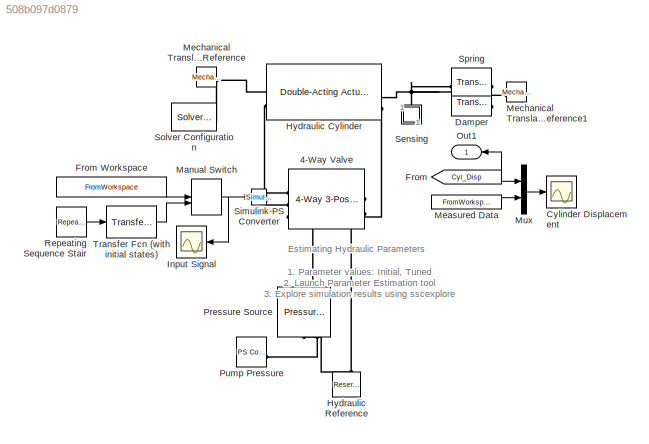
MODEL slx_508b097d0879
KIND model
CONFIG AbsTol = 1e-3
CONFIG EnableMultiTasking = on
CONFIG PreLoadFcn = load HS_Param_Est_Data\nHS_Param_Start_Values\n
CONFIG SolverName = ode23t
CONFIG StopTime = 12
BLOCK [Reference] 4-Way Valve  REF=SimscapeFluids_lib/Isothermal Liquid/Valves & Orifices/Directional Control
Valves/4-Way 3-Position
Directional Valve
(IL)
  LibrarySourceBlock = sh_lib/Valves/Directional Valves/4-Way Directional\nValve
  NameLocation = right
  SourceBlock = SimscapeFluids_lib/Isothermal Liquid/Valves & Orifices/Directional Control\nValves/4-Way 3-Position\nDirectional Valve\n(IL)
  SourceType = 4-Way 3-Position\nDirectional Valve\n(IL)
  Tag = Factory Generic
BLOCK [Scope] Cylinder Displacement
  ActiveDisplayYMaximum = 0.48539
  ActiveDisplayYMinimum = -1.41946
  DataLogging = on
  DataLoggingDecimation = 1
  DataLoggingSaveFormat = Structure With Time
  DataLoggingVariableName = HS_Param_Est_DATA
  Floating = off
  GraphicalSettings = {"GraphicalSettings":{"LegacySettings":true,"Style":{"AxesScalingProperties":{"ScaleAxesLimitsAtStop":false},"Style":{"AxesColor":"[0 0 0]","BackgroundColor":"[0.501960784313725 0.501960784313725 0.501960784313725]","ChannelNames":[""],"ColorOrder":"[1 0.909803921568627 0.392156862745098;0.149019607843137 0.549019607843137 0.866666666666667;0.96078431372549 0.466666666666667 0.16078431372549;0.286...<+669ch>
  MultipleDisplayCache = [{"MaxYLimMag":1.41946,"MaxYLimReal":0.48539,"MinYLimMag":0,"MinYLimReal":-1.41946,"PlotAsMagnitudePhase":false,"ShowGrid":true,"ShowLegend":false,"Title":"%<SignalLabel>","YLabel":""}]
  NumInputPorts = 1
  ScopeFrameLocation = window
  Visible = on
  WasSavedAsWebScope = on
  WindowPosition = [716.000000,781.000000,418.000000,210.000000,]
BLOCK [Reference] Damper  REF=fl_lib/Mechanical/Translational
Elements/Translational Damper
  SourceBlock = fl_lib/Mechanical/Translational\nElements/Translational Damper
  SourceType = Translational Damper
BLOCK [From] From
  GotoTag = Cyl_Disp
  Tag = CustomStyle
  TagVisibility = global
BLOCK [FromWorkspace] From Workspace
  NameLocation = top
  VariableName = [HS_Input_time HS_Input_signal]
BLOCK [Reference] Hydraulic Cylinder  REF=SimscapeFluids_lib/Isothermal Liquid/Actuators/Double-Acting
Actuator (IL)
  LibrarySourceBlock = sh_lib/Hydraulic Cylinders/Double-Acting\nHydraulic Cylinder
  SourceBlock = SimscapeFluids_lib/Isothermal Liquid/Actuators/Double-Acting\nActuator (IL)
  SourceType = Double-Acting\nActuator (IL)
BLOCK [Reference] Hydraulic Reference  REF=fl_lib/Isothermal Liquid/Elements/Reservoir (IL)
  LibrarySourceBlock = fl_lib/Hydraulic/Hydraulic Elements/Hydraulic Reference
  NameLocation = right
  SourceBlock = fl_lib/Isothermal Liquid/Elements/Reservoir (IL)
  SourceType = Reservoir (IL)
  Tag = Factory Generic
BLOCK [Scope] Input Signal
  ActiveDisplayYMaximum = 1.25
  ActiveDisplayYMinimum = -1.25
  DataLogging = on
  DataLoggingDecimation = 1
  DataLoggingSaveFormat = Structure With Time
  DataLoggingVariableName = HS_Param_Est_Input_DATA
  Floating = off
  GraphicalSettings = {"GraphicalSettings":{"LegacySettings":true,"Style":{"Style":{"AxesColor":"[0 0 0]","BackgroundColor":"[0.501960784313725 0.501960784313725 0.501960784313725]","ChannelNames":[""],"ColorOrder":"[1 0.909803921568627 0.392156862745098;0.149019607843137 0.549019607843137 0.866666666666667;0.96078431372549 0.466666666666667 0.16078431372549;0.286274509803922 0.858823529411765 0.250980392156863;0.75294...<+615ch>
  MultipleDisplayCache = [{"MaxYLimMag":1.25,"MaxYLimReal":1.25,"MinYLimMag":0,"MinYLimReal":-1.25,"PlotAsMagnitudePhase":false,"ShowGrid":true,"ShowLegend":false,"Title":"%<SignalLabel>","YLabel":""}]
  NumInputPorts = 1
  WasSavedAsWebScope = on
BLOCK [ManualSwitch] Manual Switch
BLOCK [FromWorkspace] Measured Data
  VariableName = [HS_Position_time HS_Position_signal]
BLOCK [Reference] Mechanical Translational Reference  REF=fl_lib/Mechanical/Translational
Elements/Mechanical
Translational
Reference
  SourceBlock = fl_lib/Mechanical/Translational\nElements/Mechanical\nTranslational\nReference
  SourceType = Mechanical\nTranslational\nReference
BLOCK [Reference] Mechanical Translational Reference1  REF=fl_lib/Mechanical/Translational
Elements/Mechanical
Translational
Reference
  SourceBlock = fl_lib/Mechanical/Translational\nElements/Mechanical\nTranslational\nReference
  SourceType = Mechanical\nTranslational\nReference
BLOCK [Mux] Mux
  DisplayOption = bar
  Inputs = 2
BLOCK [Outport] Out1
  VectorParamsAs1DForOutWhenUnconnected = off
BLOCK [Reference] Pressure Source  REF=fl_lib/Isothermal Liquid/Sources/Pressure Source (IL)
  LibrarySourceBlock = fl_lib/Hydraulic/Hydraulic Sources/Hydraulic Pressure\nSource
  NameLocation = left
  SourceBlock = fl_lib/Isothermal Liquid/Sources/Pressure Source (IL)
  SourceType = Pressure Source (IL)
  Tag = Factory Generic
BLOCK [Reference] Pump Pressure  REF=fl_lib/Physical Signals/Sources/PS Constant
  SourceBlock = fl_lib/Physical Signals/Sources/PS Constant
  SourceType = PS Constant
BLOCK [Reference] Repeating Sequence Stair  REF=simulink/Sources/Repeating
Sequence
Stair
  SourceBlock = simulink/Sources/Repeating\nSequence\nStair
  SourceType = Repeating Sequence Stair
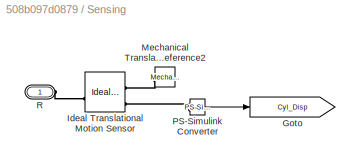
BLOCK [SubSystem] Sensing
  NameLocation = left
  Tag = CustomStyle
BLOCK [Goto] Sensing/Goto
  GotoTag = Cyl_Disp
  TagVisibility = global
BLOCK [Reference] Sensing/Ideal Translational Motion Sensor  REF=fl_lib/Mechanical/Mechanical Sensors/Ideal Translational
Motion Sensor
  SourceBlock = fl_lib/Mechanical/Mechanical Sensors/Ideal Translational\nMotion Sensor
  SourceType = Ideal Translational\nMotion Sensor
BLOCK [Reference] Sensing/Mechanical Translational Reference2  REF=fl_lib/Mechanical/Translational
Elements/Mechanical
Translational
Reference
  SourceBlock = fl_lib/Mechanical/Translational\nElements/Mechanical\nTranslational\nReference
  SourceType = Mechanical\nTranslational\nReference
BLOCK [Reference] Sensing/PS-Simulink Converter  REF=nesl_utility/PS-Simulink
Converter
  SourceBlock = nesl_utility/PS-Simulink\nConverter
  SourceType = PS-Simulink\nConverter
BLOCK [PMIOPort] Sensing/R
  NameLocation = top
  Side = Left
BLOCK [Reference] Simulink-PS Converter  REF=nesl_utility/Simulink-PS
Converter
  SourceBlock = nesl_utility/Simulink-PS\nConverter
  SourceType = Simulink-PS\nConverter
BLOCK [Reference] Solver Configuration  REF=nesl_utility/Solver
Configuration
  NameLocation = top
  SourceBlock = nesl_utility/Solver\nConfiguration
  SourceType = Solver\nConfiguration
BLOCK [Reference] Spring  REF=fl_lib/Mechanical/Translational
Elements/Translational Spring
  SourceBlock = fl_lib/Mechanical/Translational\nElements/Translational Spring
  SourceType = Translational Spring
BLOCK [Reference] Transfer Fcn (with initial states)  REF=simulink_extras/Additional
Linear/Transfer Fcn
(with initial states)
  SourceBlock = simulink_extras/Additional\nLinear/Transfer Fcn\n(with initial states)
  SourceType = Transfer Function with Initial States
ANNOTATION (root): 1. Parameter values: Initial , Tuned 2. Launch Parameter Estimation tool 3. Explore simulation results using sscexplore
ANNOTATION (root): Estimating Hydraulic Parameters
LINE From Workspace:1 -> Manual Switch:1
NET From:1 -> Mux:1, Out1:1
NET Manual Switch:1 -> Input Signal:1, Simulink-PS Converter:1
LINE Measured Data:1 -> Mux:2
LINE Mux:1 -> Cylinder Displacement:1
LINE Repeating Sequence Stair:1 -> Transfer Fcn (with initial states):1
LINE Sensing/PS-Simulink Converter:1 -> Sensing/Goto:1
LINE Transfer Fcn (with initial states):1 -> Manual Switch:2
PLINE 4-Way Valve:LConn1 -- Simulink-PS Converter:RConn1
PLINE 4-Way Valve:LConn2 -- Hydraulic Cylinder:LConn2
PLINE 4-Way Valve:LConn3 -- Hydraulic Cylinder:RConn3
PLINE 4-Way Valve:RConn1 -- Pressure Source:RConn1
PNET net1: 4-Way Valve:RConn2 -- Hydraulic Reference:LConn1 -- Pressure Source:LConn1
PNET net2: Damper:LConn1 -- Hydraulic Cylinder:RConn2 -- Sensing:LConn1 -- Spring:LConn1
PNET net3: Damper:RConn1 -- Mechanical Translational Reference1:LConn1 -- Spring:RConn1
PNET net4: Hydraulic Cylinder:LConn1 -- Mechanical Translational Reference:LConn1 -- Solver Configuration:RConn1
PLINE Pressure Source:LConn2 -- Pump Pressure:RConn1
PLINE Sensing/Ideal Translational Motion Sensor:LConn1 -- Sensing/R:RConn1
PLINE Sensing/Ideal Translational Motion Sensor:RConn1 -- Sensing/Mechanical Translational Reference2:LConn1
PLINE Sensing/Ideal Translational Motion Sensor:RConn3 -- Sensing/PS-Simulink Converter:LConn1
note: NET lines group one-source signal fan-out (src -> all destinations, sorted); 1:1 wires keep LINE; PNET lines group multi-terminal physical nets as a canonical sorted terminal list (undirected conserving connections); 2-terminal nets keep the pairwise PLINE form
